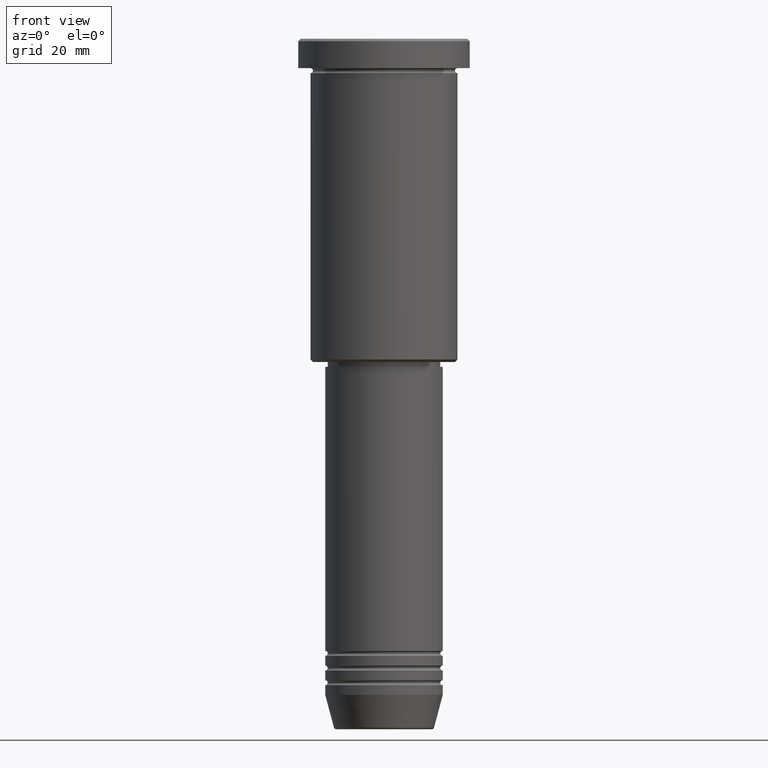
[diagram: clean part render]
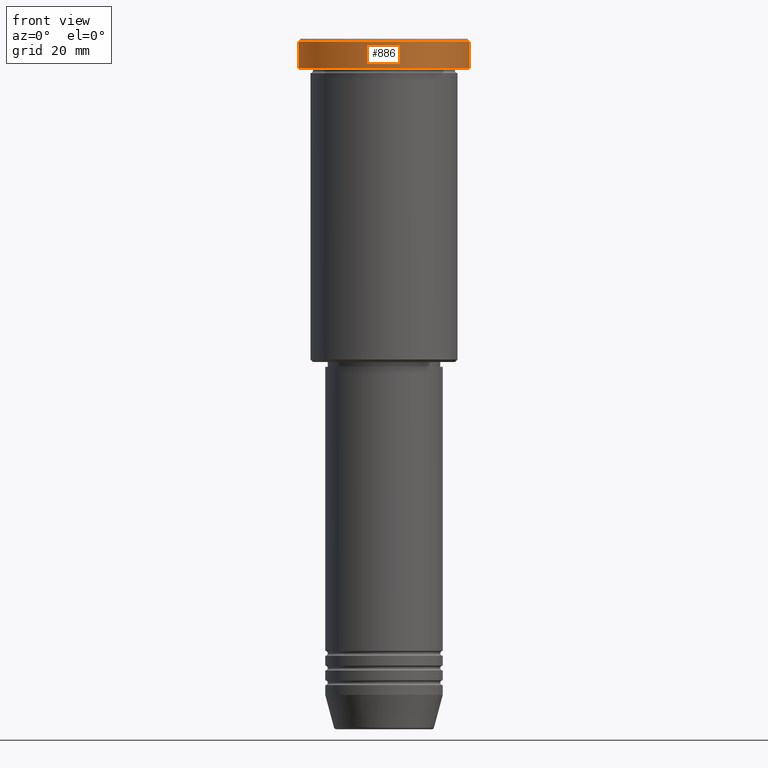
[diagram: same view with one face highlighted and labeled with its STEP entity id]
A machine part, front view. The second image highlights one B-rep face of the part: STEP entity #886.
In plain terms, the highlighted cylindrical surface (partial cylindrical patch) has radius 17.5 mm, axis along (-0, -0, 1).
Its self-contained STEP definition (entity closure, byte-faithful):
#7 = LINE ( 'NONE', #1101, #393 ) ;
#54 = CIRCLE ( 'NONE', #330, 17.50000000000000000 ) ;
#93 = EDGE_LOOP ( 'NONE', ( #341, #177, #1085, #672 ) ) ;
#120 = CARTESIAN_POINT ( 'NONE',  ( -17.50000000000000000, 2.143131898507868248E-15, 0.000000000000000000 ) ) ;
#159 = DIRECTION ( 'NONE',  ( -0.000000000000000000, -0.000000000000000000, 1.000000000000000000 ) ) ;
#177 = ORIENTED_EDGE ( 'NONE', *, *, #842, .T. ) ;
#181 = CARTESIAN_POINT ( 'NONE',  ( 17.50000000000000000, 0.000000000000000000, -0.5000000000000143219 ) ) ;
#208 = VERTEX_POINT ( 'NONE', #1089 ) ;
#262 = DIRECTION ( 'NONE',  ( -0.000000000000000000, -0.000000000000000000, 1.000000000000000000 ) ) ;
#291 = VERTEX_POINT ( 'NONE', #885 ) ;
#301 = LINE ( 'NONE', #120, #1039 ) ;
#304 = DIRECTION ( 'NONE',  ( 1.000000000000000000, 0.000000000000000000, 0.000000000000000000 ) ) ;
#330 = AXIS2_PLACEMENT_3D ( 'NONE', #1051, #159, #522 ) ;
#341 = ORIENTED_EDGE ( 'NONE', *, *, #1142, .F. ) ;
#393 = VECTOR ( 'NONE', #262, 1000.000000000000000 ) ;
#484 = DIRECTION ( 'NONE',  ( 0.000000000000000000, 0.000000000000000000, -1.000000000000000000 ) ) ;
#509 = AXIS2_PLACEMENT_3D ( 'NONE', #687, #1066, #664 ) ;
#522 = DIRECTION ( 'NONE',  ( 1.000000000000000000, 0.000000000000000000, 0.000000000000000000 ) ) ;
#541 = VERTEX_POINT ( 'NONE', #181 ) ;
#597 = AXIS2_PLACEMENT_3D ( 'NONE', #962, #484, #304 ) ;
#635 = CARTESIAN_POINT ( 'NONE',  ( 17.50000000000000000, 0.000000000000000000, -5.999999999999995559 ) ) ;
#664 = DIRECTION ( 'NONE',  ( 1.000000000000000000, 0.000000000000000000, 0.000000000000000000 ) ) ;
#672 = ORIENTED_EDGE ( 'NONE', *, *, #801, .T. ) ;
#687 = CARTESIAN_POINT ( 'NONE',  ( 0.000000000000000000, 0.000000000000000000, 0.000000000000000000 ) ) ;
#739 = DIRECTION ( 'NONE',  ( -0.000000000000000000, -0.000000000000000000, 1.000000000000000000 ) ) ;
#801 = EDGE_CURVE ( 'NONE', #541, #208, #1115, .T. ) ;
#842 = EDGE_CURVE ( 'NONE', #291, #1016, #54, .T. ) ;
#878 = FACE_OUTER_BOUND ( 'NONE', #93, .T. ) ;
#885 = CARTESIAN_POINT ( 'NONE',  ( -17.50000000000000000, 2.143131898507868248E-15, -5.999999999999995559 ) ) ;
#886 = ADVANCED_FACE ( 'NONE', ( #878 ), #1146, .T. ) ;
#936 = EDGE_CURVE ( 'NONE', #1016, #541, #7, .T. ) ;
#962 = CARTESIAN_POINT ( 'NONE',  ( 0.000000000000000000, 0.000000000000000000, -0.5000000000000143219 ) ) ;
#1016 = VERTEX_POINT ( 'NONE', #635 ) ;
#1039 = VECTOR ( 'NONE', #739, 1000.000000000000000 ) ;
#1051 = CARTESIAN_POINT ( 'NONE',  ( 0.000000000000000000, 0.000000000000000000, -5.999999999999995559 ) ) ;
#1066 = DIRECTION ( 'NONE',  ( -0.000000000000000000, -0.000000000000000000, 1.000000000000000000 ) ) ;
#1085 = ORIENTED_EDGE ( 'NONE', *, *, #936, .T. ) ;
#1089 = CARTESIAN_POINT ( 'NONE',  ( -17.50000000000000000, 2.143131898507868248E-15, -0.5000000000000143219 ) ) ;
#1101 = CARTESIAN_POINT ( 'NONE',  ( 17.50000000000000000, 0.000000000000000000, 0.000000000000000000 ) ) ;
#1115 = CIRCLE ( 'NONE', #597, 17.50000000000000000 ) ;
#1142 = EDGE_CURVE ( 'NONE', #291, #208, #301, .T. ) ;
#1146 = CYLINDRICAL_SURFACE ( 'NONE', #509, 17.50000000000000000 ) ;